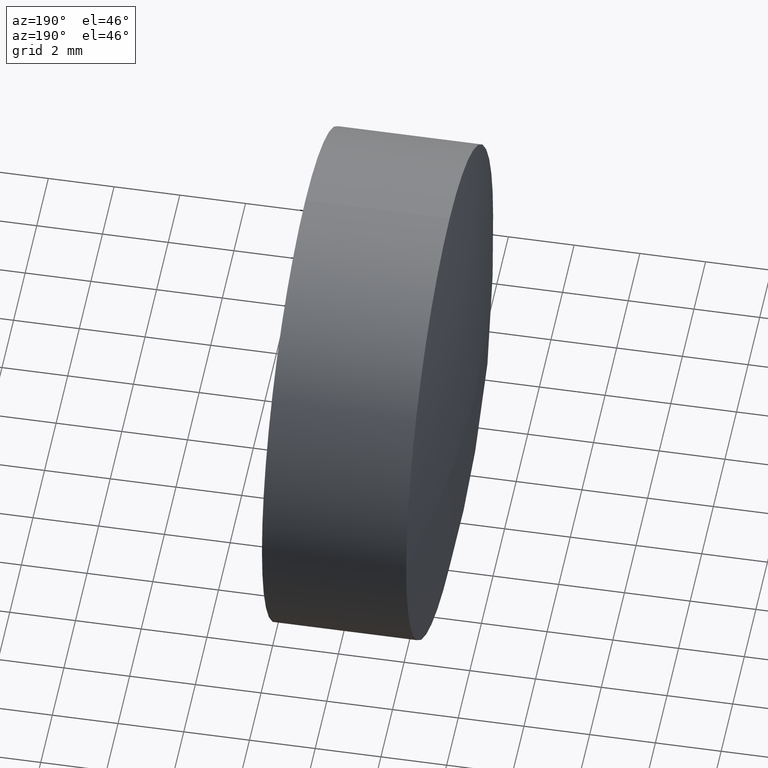
[diagram: clean part render]
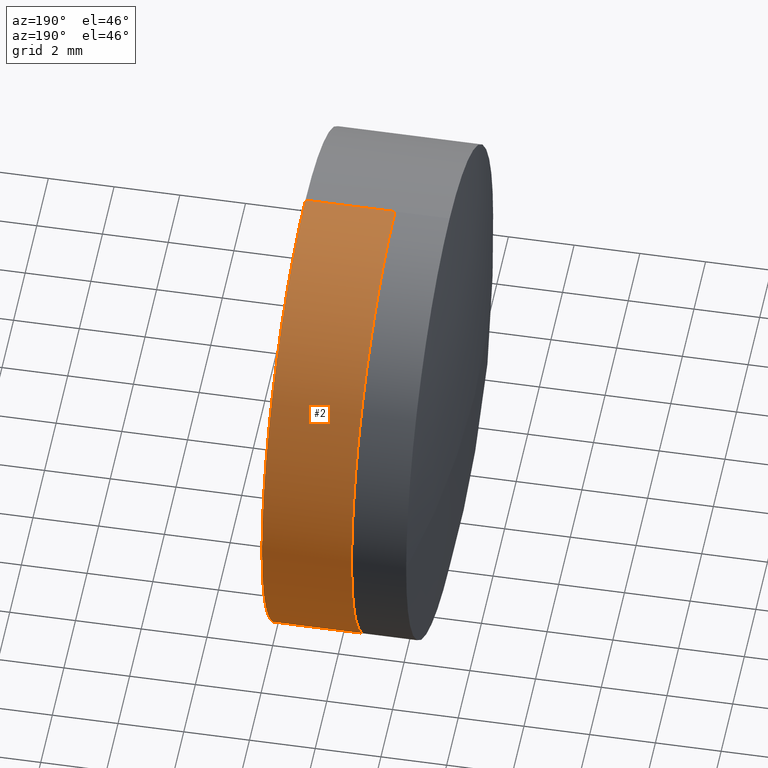
[diagram: same view with one face highlighted and labeled with its STEP entity id]
A machine part, auxiliary view. The second image highlights one B-rep face of the part: STEP entity #2.
In plain terms, the highlighted cylindrical surface (partial cylindrical patch) has radius 7.5 mm, axis along (-1, -0, -0).
Its self-contained STEP definition (entity closure, byte-faithful):
#2 = ADVANCED_FACE ( 'NONE', ( #95 ), #256, .T. ) ;
#3 = DIRECTION ( 'NONE',  ( 0.000000000000000000, 0.000000000000000000, 1.000000000000000000 ) ) ;
#7 = ORIENTED_EDGE ( 'NONE', *, *, #255, .F. ) ;
#37 = EDGE_CURVE ( 'NONE', #44, #60, #206, .T. ) ;
#44 = VERTEX_POINT ( 'NONE', #251 ) ;
#45 = CARTESIAN_POINT ( 'NONE',  ( -84.31590303918355289, 10.13402828794794708, 7.500000000000000000 ) ) ;
#60 = VERTEX_POINT ( 'NONE', #391 ) ;
#73 = DIRECTION ( 'NONE',  ( -1.000000000000000000, -0.000000000000000000, -0.000000000000000000 ) ) ;
#91 = AXIS2_PLACEMENT_3D ( 'NONE', #182, #149, #188 ) ;
#95 = FACE_OUTER_BOUND ( 'NONE', #402, .T. ) ;
#98 = EDGE_CURVE ( 'NONE', #197, #207, #232, .T. ) ;
#103 = DIRECTION ( 'NONE',  ( 0.000000000000000000, 0.000000000000000000, 1.000000000000000000 ) ) ;
#104 = AXIS2_PLACEMENT_3D ( 'NONE', #178, #319, #3 ) ;
#131 = VERTEX_POINT ( 'NONE', #202 ) ;
#136 = ORIENTED_EDGE ( 'NONE', *, *, #304, .F. ) ;
#148 = VERTEX_POINT ( 'NONE', #351 ) ;
#149 = DIRECTION ( 'NONE',  ( -1.000000000000000000, -0.000000000000000000, -0.000000000000000000 ) ) ;
#168 = DIRECTION ( 'NONE',  ( -1.000000000000000000, -0.000000000000000000, -0.000000000000000000 ) ) ;
#178 = CARTESIAN_POINT ( 'NONE',  ( -84.31590303918355289, 10.13402828794794708, 0.000000000000000000 ) ) ;
#182 = CARTESIAN_POINT ( 'NONE',  ( -85.94668932278507611, 10.13402828794794708, 0.000000000000000000 ) ) ;
#183 = ORIENTED_EDGE ( 'NONE', *, *, #353, .T. ) ;
#185 = CARTESIAN_POINT ( 'NONE',  ( -84.31590303918355289, 17.63402828794788491, 0.000000000000000000 ) ) ;
#188 = DIRECTION ( 'NONE',  ( 0.000000000000000000, 0.000000000000000000, 1.000000000000000000 ) ) ;
#197 = VERTEX_POINT ( 'NONE', #45 ) ;
#202 = CARTESIAN_POINT ( 'NONE',  ( -84.31590303918355289, 10.13402828794794885, -7.500000000000000000 ) ) ;
#206 = CIRCLE ( 'NONE', #311, 7.500000000000000000 ) ;
#207 = VERTEX_POINT ( 'NONE', #185 ) ;
#219 = CARTESIAN_POINT ( 'NONE',  ( -85.94668932278507611, 10.13402828794794708, 7.500000000000000000 ) ) ;
#232 = CIRCLE ( 'NONE', #365, 7.500000000000000000 ) ;
#245 = ORIENTED_EDGE ( 'NONE', *, *, #422, .T. ) ;
#251 = CARTESIAN_POINT ( 'NONE',  ( -87.04354085552412812, 17.63402828794793820, 0.000000000000000000 ) ) ;
#252 = LINE ( 'NONE', #219, #269 ) ;
#255 = EDGE_CURVE ( 'NONE', #197, #148, #252, .T. ) ;
#256 = CYLINDRICAL_SURFACE ( 'NONE', #91, 7.500000000000000000 ) ;
#269 = VECTOR ( 'NONE', #363, 1000.000000000000000 ) ;
#303 = VECTOR ( 'NONE', #412, 1000.000000000000000 ) ;
#304 = EDGE_CURVE ( 'NONE', #148, #44, #403, .T. ) ;
#307 = CARTESIAN_POINT ( 'NONE',  ( -85.94668932278507611, 10.13402828794794885, -7.500000000000000000 ) ) ;
#311 = AXIS2_PLACEMENT_3D ( 'NONE', #388, #356, #430 ) ;
#314 = ORIENTED_EDGE ( 'NONE', *, *, #98, .T. ) ;
#317 = CARTESIAN_POINT ( 'NONE',  ( -87.04354085552412812, 10.13402828794794708, 0.000000000000000000 ) ) ;
#319 = DIRECTION ( 'NONE',  ( -1.000000000000000000, -0.000000000000000000, -0.000000000000000000 ) ) ;
#343 = LINE ( 'NONE', #307, #303 ) ;
#351 = CARTESIAN_POINT ( 'NONE',  ( -87.04354085552412812, 10.13402828794794708, 7.500000000000000000 ) ) ;
#353 = EDGE_CURVE ( 'NONE', #207, #131, #445, .T. ) ;
#356 = DIRECTION ( 'NONE',  ( -1.000000000000000000, -0.000000000000000000, -0.000000000000000000 ) ) ;
#362 = AXIS2_PLACEMENT_3D ( 'NONE', #317, #168, #103 ) ;
#363 = DIRECTION ( 'NONE',  ( -1.000000000000000000, -0.000000000000000000, -0.000000000000000000 ) ) ;
#365 = AXIS2_PLACEMENT_3D ( 'NONE', #383, #73, #418 ) ;
#383 = CARTESIAN_POINT ( 'NONE',  ( -84.31590303918355289, 10.13402828794794708, 0.000000000000000000 ) ) ;
#388 = CARTESIAN_POINT ( 'NONE',  ( -87.04354085552412812, 10.13402828794794708, 0.000000000000000000 ) ) ;
#391 = CARTESIAN_POINT ( 'NONE',  ( -87.04354085552412812, 10.13402828794794885, -7.500000000000000000 ) ) ;
#402 = EDGE_LOOP ( 'NONE', ( #183, #245, #417, #136, #7, #314 ) ) ;
#403 = CIRCLE ( 'NONE', #362, 7.500000000000000000 ) ;
#412 = DIRECTION ( 'NONE',  ( -1.000000000000000000, -0.000000000000000000, -0.000000000000000000 ) ) ;
#417 = ORIENTED_EDGE ( 'NONE', *, *, #37, .F. ) ;
#418 = DIRECTION ( 'NONE',  ( 0.000000000000000000, 0.000000000000000000, 1.000000000000000000 ) ) ;
#422 = EDGE_CURVE ( 'NONE', #131, #60, #343, .T. ) ;
#430 = DIRECTION ( 'NONE',  ( 0.000000000000000000, 0.000000000000000000, 1.000000000000000000 ) ) ;
#445 = CIRCLE ( 'NONE', #104, 7.500000000000000000 ) ;